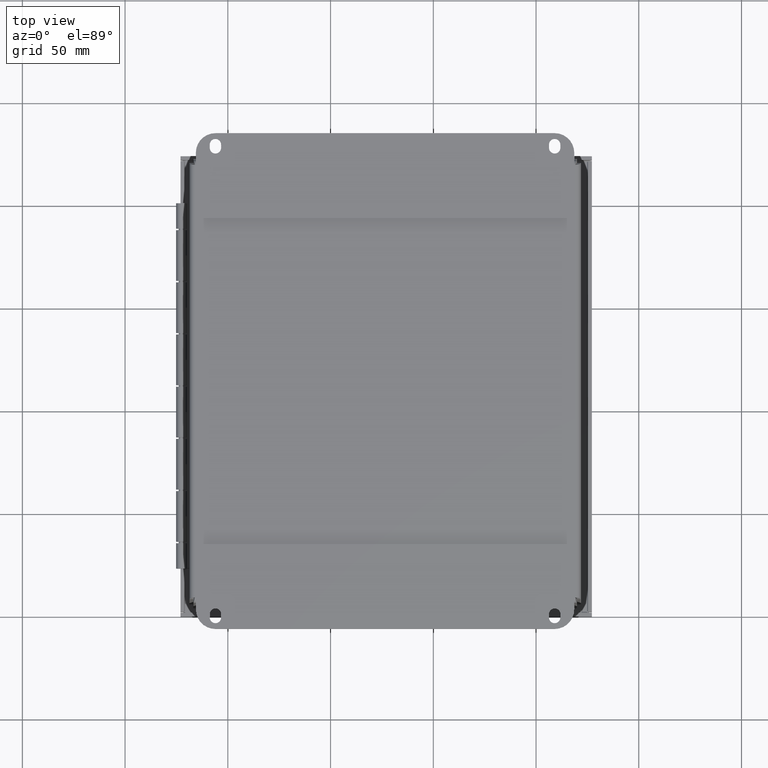
[diagram: clean part render]
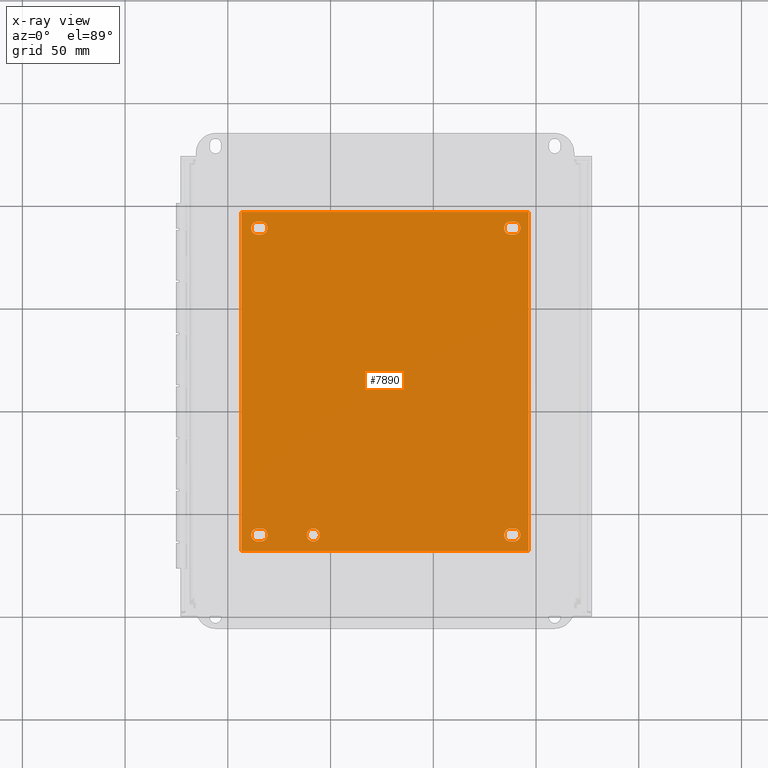
[diagram: x-ray — body ghosted, one internal face saturated and labeled with its STEP entity id]
A machine part, top view, then the same camera in x-ray: the body is ghosted and one INTERNAL B-rep face — a face not visible from any outside direction — is saturated and labeled: STEP entity #7890.
In plain terms, the highlighted planar face has unit normal (-0, -0, 1).
Its self-contained STEP definition (entity closure, byte-faithful):
#237=FACE_BOUND('',#1492,.T.);
#238=FACE_BOUND('',#1493,.T.);
#239=FACE_BOUND('',#1494,.T.);
#240=FACE_BOUND('',#1495,.T.);
#241=FACE_BOUND('',#1496,.T.);
#404=CIRCLE('',#8383,0.125);
#406=CIRCLE('',#8387,0.125);
#408=CIRCLE('',#8391,0.125);
#410=CIRCLE('',#8395,0.125);
#412=CIRCLE('',#8399,0.125);
#414=CIRCLE('',#8403,0.125);
#416=CIRCLE('',#8407,0.125);
#418=CIRCLE('',#8411,0.125);
#420=CIRCLE('',#8414,0.125);
#1022=FACE_OUTER_BOUND('',#1491,.T.);
#1491=EDGE_LOOP('',(#6148,#6149,#6150,#6151));
#1492=EDGE_LOOP('',(#6152,#6153,#6154,#6155));
#1493=EDGE_LOOP('',(#6156,#6157,#6158,#6159));
#1494=EDGE_LOOP('',(#6160,#6161,#6162,#6163));
#1495=EDGE_LOOP('',(#6164,#6165,#6166,#6167));
#1496=EDGE_LOOP('',(#6168));
#2209=LINE('',#12649,#2923);
#2213=LINE('',#12661,#2927);
#2217=LINE('',#12673,#2931);
#2221=LINE('',#12685,#2935);
#2225=LINE('',#12697,#2939);
#2229=LINE('',#12709,#2943);
#2233=LINE('',#12721,#2947);
#2237=LINE('',#12733,#2951);
#2239=LINE('',#12746,#2953);
#2243=LINE('',#12754,#2957);
#2246=LINE('',#12760,#2960);
#2249=LINE('',#12765,#2963);
#2923=VECTOR('',#9804,0.0619999999999998);
#2927=VECTOR('',#9816,0.0619999999999998);
#2931=VECTOR('',#9828,0.0620000000000005);
#2935=VECTOR('',#9840,0.0620000000000005);
#2939=VECTOR('',#9852,0.0619999999999998);
#2943=VECTOR('',#9864,0.062);
#2947=VECTOR('',#9876,0.0619999999999998);
#2951=VECTOR('',#9888,0.0619999999999997);
#2953=VECTOR('',#9904,6.5);
#2957=VECTOR('',#9910,5.5);
#2960=VECTOR('',#9915,6.5);
#2963=VECTOR('',#9920,5.5);
#3540=VERTEX_POINT('',#12646);
#3541=VERTEX_POINT('',#12648);
#3543=VERTEX_POINT('',#12654);
#3545=VERTEX_POINT('',#12660);
#3548=VERTEX_POINT('',#12670);
#3549=VERTEX_POINT('',#12672);
#3551=VERTEX_POINT('',#12678);
#3553=VERTEX_POINT('',#12684);
#3556=VERTEX_POINT('',#12694);
#3557=VERTEX_POINT('',#12696);
#3559=VERTEX_POINT('',#12702);
#3561=VERTEX_POINT('',#12708);
#3564=VERTEX_POINT('',#12718);
#3565=VERTEX_POINT('',#12720);
#3567=VERTEX_POINT('',#12726);
#3569=VERTEX_POINT('',#12732);
#3571=VERTEX_POINT('',#12741);
#3572=VERTEX_POINT('',#12744);
#3573=VERTEX_POINT('',#12745);
#3576=VERTEX_POINT('',#12753);
#3578=VERTEX_POINT('',#12759);
#4448=EDGE_CURVE('',#3541,#3540,#2209,.T.);
#4451=EDGE_CURVE('',#3543,#3541,#404,.T.);
#4454=EDGE_CURVE('',#3545,#3543,#2213,.T.);
#4457=EDGE_CURVE('',#3540,#3545,#406,.T.);
#4460=EDGE_CURVE('',#3549,#3548,#2217,.T.);
#4463=EDGE_CURVE('',#3551,#3549,#408,.T.);
#4466=EDGE_CURVE('',#3553,#3551,#2221,.T.);
#4469=EDGE_CURVE('',#3548,#3553,#410,.T.);
#4472=EDGE_CURVE('',#3557,#3556,#2225,.T.);
#4475=EDGE_CURVE('',#3559,#3557,#412,.T.);
#4478=EDGE_CURVE('',#3561,#3559,#2229,.T.);
#4481=EDGE_CURVE('',#3556,#3561,#414,.T.);
#4484=EDGE_CURVE('',#3565,#3564,#2233,.T.);
#4487=EDGE_CURVE('',#3567,#3565,#416,.T.);
#4490=EDGE_CURVE('',#3569,#3567,#2237,.T.);
#4493=EDGE_CURVE('',#3564,#3569,#418,.T.);
#4495=EDGE_CURVE('',#3571,#3571,#420,.T.);
#4496=EDGE_CURVE('',#3572,#3573,#2239,.T.);
#4500=EDGE_CURVE('',#3573,#3576,#2243,.T.);
#4503=EDGE_CURVE('',#3576,#3578,#2246,.T.);
#4506=EDGE_CURVE('',#3578,#3572,#2249,.T.);
#6148=ORIENTED_EDGE('',*,*,#4496,.F.);
#6149=ORIENTED_EDGE('',*,*,#4506,.F.);
#6150=ORIENTED_EDGE('',*,*,#4503,.F.);
#6151=ORIENTED_EDGE('',*,*,#4500,.F.);
#6152=ORIENTED_EDGE('',*,*,#4448,.T.);
#6153=ORIENTED_EDGE('',*,*,#4457,.T.);
#6154=ORIENTED_EDGE('',*,*,#4454,.T.);
#6155=ORIENTED_EDGE('',*,*,#4451,.T.);
#6156=ORIENTED_EDGE('',*,*,#4460,.T.);
#6157=ORIENTED_EDGE('',*,*,#4469,.T.);
#6158=ORIENTED_EDGE('',*,*,#4466,.T.);
#6159=ORIENTED_EDGE('',*,*,#4463,.T.);
#6160=ORIENTED_EDGE('',*,*,#4472,.T.);
#6161=ORIENTED_EDGE('',*,*,#4481,.T.);
#6162=ORIENTED_EDGE('',*,*,#4478,.T.);
#6163=ORIENTED_EDGE('',*,*,#4475,.T.);
#6164=ORIENTED_EDGE('',*,*,#4484,.T.);
#6165=ORIENTED_EDGE('',*,*,#4493,.T.);
#6166=ORIENTED_EDGE('',*,*,#4490,.T.);
#6167=ORIENTED_EDGE('',*,*,#4487,.T.);
#6168=ORIENTED_EDGE('',*,*,#4495,.T.);
#7222=PLANE('',#8420);
#7890=ADVANCED_FACE('',(#1022,#237,#238,#239,#240,#241),#7222,.T.);
#8383=AXIS2_PLACEMENT_3D('',#12655,#9810,#9811);
#8387=AXIS2_PLACEMENT_3D('',#12665,#9822,#9823);
#8391=AXIS2_PLACEMENT_3D('',#12679,#9834,#9835);
#8395=AXIS2_PLACEMENT_3D('',#12689,#9846,#9847);
#8399=AXIS2_PLACEMENT_3D('',#12703,#9858,#9859);
#8403=AXIS2_PLACEMENT_3D('',#12713,#9870,#9871);
#8407=AXIS2_PLACEMENT_3D('',#12727,#9882,#9883);
#8411=AXIS2_PLACEMENT_3D('',#12737,#9894,#9895);
#8414=AXIS2_PLACEMENT_3D('',#12742,#9900,#9901);
#8420=AXIS2_PLACEMENT_3D('',#12768,#9924,#9925);
#9804=DIRECTION('',(1.,0.,0.));
#9810=DIRECTION('center_axis',(0.,0.,-1.));
#9811=DIRECTION('ref_axis',(0.,-1.,0.));
#9816=DIRECTION('',(-1.,0.,0.));
#9822=DIRECTION('center_axis',(0.,0.,-1.));
#9823=DIRECTION('ref_axis',(0.,1.,0.));
#9828=DIRECTION('',(1.,2.25597769799369E-14,0.));
#9834=DIRECTION('center_axis',(0.,0.,-1.));
#9835=DIRECTION('ref_axis',(0.,1.,0.));
#9840=DIRECTION('',(-1.,2.25597769799369E-14,0.));
#9846=DIRECTION('center_axis',(0.,0.,-1.));
#9847=DIRECTION('ref_axis',(0.,-1.,0.));
#9852=DIRECTION('',(-1.,0.,0.));
#9858=DIRECTION('center_axis',(0.,0.,-1.));
#9859=DIRECTION('ref_axis',(-3.49676543189026E-16,-1.,0.));
#9864=DIRECTION('',(1.,0.,0.));
#9870=DIRECTION('center_axis',(0.,0.,-1.));
#9871=DIRECTION('ref_axis',(0.,1.,0.));
#9876=DIRECTION('',(1.,6.76793309398114E-14,0.));
#9882=DIRECTION('center_axis',(0.,0.,-1.));
#9883=DIRECTION('ref_axis',(-3.74153901212265E-14,1.,0.));
#9888=DIRECTION('',(-1.,-3.38396654699059E-14,0.));
#9894=DIRECTION('center_axis',(0.,0.,-1.));
#9895=DIRECTION('ref_axis',(3.74153901212257E-14,-1.,0.));
#9900=DIRECTION('center_axis',(0.,0.,-1.));
#9901=DIRECTION('ref_axis',(-1.,0.,0.));
#9904=DIRECTION('',(-3.06161699786838E-16,1.,0.));
#9910=DIRECTION('',(1.,2.54310213228382E-16,0.));
#9915=DIRECTION('',(3.22778347559101E-16,-1.,0.));
#9920=DIRECTION('',(-1.,0.,0.));
#9924=DIRECTION('center_axis',(0.,0.,1.));
#9925=DIRECTION('ref_axis',(1.,0.,0.));
#12646=CARTESIAN_POINT('',(5.19,0.435,0.074));
#12648=CARTESIAN_POINT('',(5.128,0.435,0.074));
#12649=CARTESIAN_POINT('',(3.97,0.435,0.074));
#12654=CARTESIAN_POINT('',(5.128,0.185,0.074));
#12655=CARTESIAN_POINT('Origin',(5.128,0.31,0.074));
#12660=CARTESIAN_POINT('',(5.19,0.185,0.074));
#12661=CARTESIAN_POINT('',(3.939,0.185,0.074));
#12665=CARTESIAN_POINT('Origin',(5.19,0.31,0.074));
#12670=CARTESIAN_POINT('',(5.19,6.315,0.074));
#12672=CARTESIAN_POINT('',(5.128,6.315,0.074));
#12673=CARTESIAN_POINT('',(3.96999999999996,6.31499999999997,0.074));
#12678=CARTESIAN_POINT('',(5.128,6.065,0.074));
#12679=CARTESIAN_POINT('Origin',(5.128,6.19,0.074));
#12684=CARTESIAN_POINT('',(5.19,6.065,0.074));
#12685=CARTESIAN_POINT('',(3.93900000000003,6.06500000000003,0.074));
#12689=CARTESIAN_POINT('Origin',(5.19,6.19,0.074));
#12694=CARTESIAN_POINT('',(0.280999999999996,0.185,0.074));
#12696=CARTESIAN_POINT('',(0.342999999999996,0.185,0.074));
#12697=CARTESIAN_POINT('',(1.5155,0.185,0.074));
#12702=CARTESIAN_POINT('',(0.342999999999996,0.435,0.074));
#12703=CARTESIAN_POINT('Origin',(0.342999999999996,0.31,0.074));
#12708=CARTESIAN_POINT('',(0.280999999999996,0.435,0.074));
#12709=CARTESIAN_POINT('',(1.5465,0.435,0.074));
#12713=CARTESIAN_POINT('Origin',(0.280999999999996,0.31,0.074));
#12718=CARTESIAN_POINT('',(0.342999999999993,6.315,0.074));
#12720=CARTESIAN_POINT('',(0.280999999999993,6.315,0.074));
#12721=CARTESIAN_POINT('',(1.54649999999989,6.31500000000008,0.074));
#12726=CARTESIAN_POINT('',(0.281000000000003,6.065,0.074));
#12727=CARTESIAN_POINT('Origin',(0.280999999999998,6.19,0.074));
#12732=CARTESIAN_POINT('',(0.343000000000003,6.065,0.074));
#12733=CARTESIAN_POINT('',(1.51549999999995,6.06500000000004,0.074));
#12737=CARTESIAN_POINT('Origin',(0.342999999999998,6.19,0.074));
#12741=CARTESIAN_POINT('',(4.25,6.19,0.074));
#12742=CARTESIAN_POINT('Origin',(4.125,6.19,0.074));
#12744=CARTESIAN_POINT('',(0.,0.,0.074));
#12745=CARTESIAN_POINT('',(-1.99005104861445E-15,6.5,0.074));
#12746=CARTESIAN_POINT('',(-1.99005104861445E-15,6.5,0.074));
#12753=CARTESIAN_POINT('',(5.5,6.5,0.074));
#12754=CARTESIAN_POINT('',(5.5,6.5,0.074));
#12759=CARTESIAN_POINT('',(5.5,0.,0.074));
#12760=CARTESIAN_POINT('',(5.5,0.,0.074));
#12765=CARTESIAN_POINT('',(0.,0.,0.074));
#12768=CARTESIAN_POINT('Origin',(2.75,3.25,0.074));